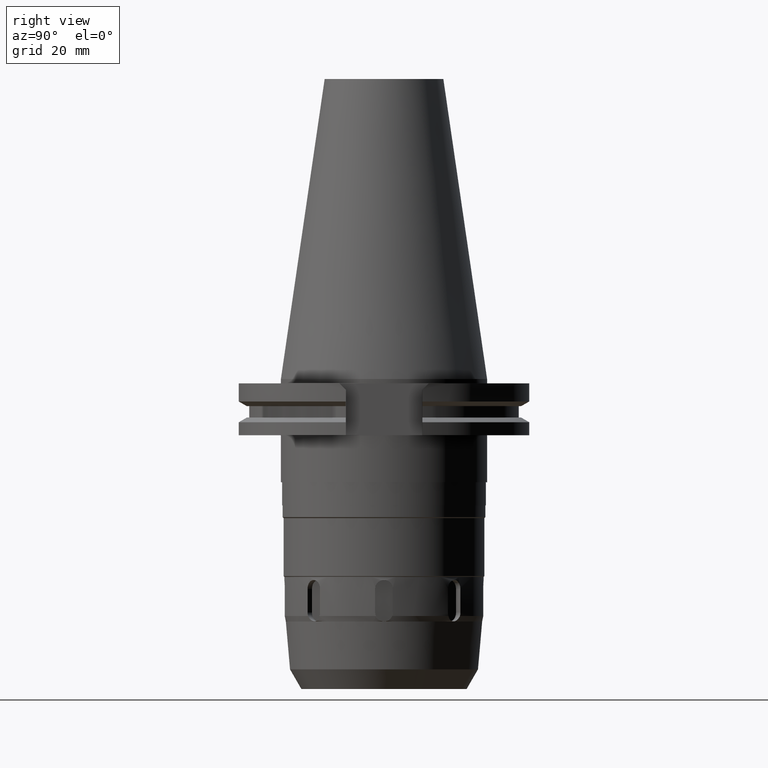
[diagram: clean part render]
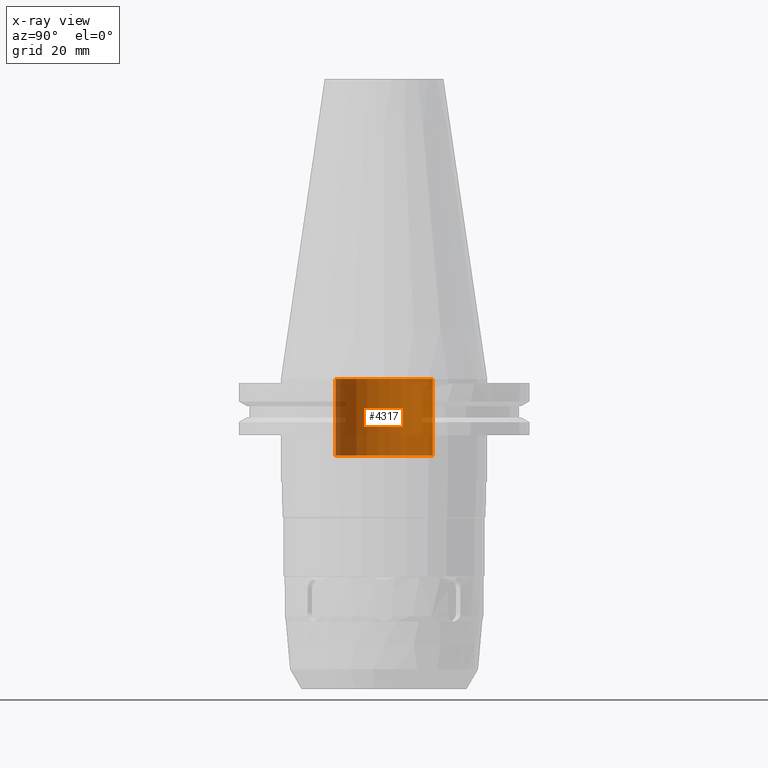
[diagram: x-ray — body ghosted, one internal face saturated and labeled with its STEP entity id]
A machine part, right view, then the same camera in x-ray: the body is ghosted and one INTERNAL B-rep face — a face not visible from any outside direction — is saturated and labeled: STEP entity #4317.
In plain terms, the highlighted cylindrical surface (partial cylindrical patch) has radius 16.5 mm, axis along (0, 0, 1).
Its self-contained STEP definition (entity closure, byte-faithful):
#1979=CARTESIAN_POINT('',(0.E0,0.E0,-2.6E1));
#1980=DIRECTION('',(0.E0,0.E0,-1.E0));
#1981=DIRECTION('',(0.E0,-1.E0,0.E0));
#1982=AXIS2_PLACEMENT_3D('',#1979,#1980,#1981);
#2011=DIRECTION('',(0.E0,0.E0,1.E0));
#2012=VECTOR('',#2011,2.6E1);
#2013=CARTESIAN_POINT('',(0.E0,-1.65E1,-2.6E1));
#2014=LINE('',#2013,#2012);
#2018=DIRECTION('',(0.E0,0.E0,1.E0));
#2019=VECTOR('',#2018,2.6E1);
#2020=CARTESIAN_POINT('',(0.E0,1.65E1,-2.6E1));
#2021=LINE('',#2020,#2019);
#2033=CARTESIAN_POINT('',(0.E0,0.E0,-5.684341886081E-14));
#2034=DIRECTION('',(0.E0,0.E0,1.E0));
#2035=DIRECTION('',(0.E0,1.E0,0.E0));
#2036=AXIS2_PLACEMENT_3D('',#2033,#2034,#2035);
#2867=CARTESIAN_POINT('',(0.E0,-1.65E1,-2.6E1));
#2868=CARTESIAN_POINT('',(0.E0,1.65E1,-2.6E1));
#2869=VERTEX_POINT('',#2867);
#2870=VERTEX_POINT('',#2868);
#2871=CARTESIAN_POINT('',(0.E0,1.65E1,1.776356839400E-14));
#2872=VERTEX_POINT('',#2871);
#2873=CARTESIAN_POINT('',(0.E0,-1.65E1,1.776356839400E-14));
#2874=VERTEX_POINT('',#2873);
#4303=CARTESIAN_POINT('',(0.E0,0.E0,-1.1533E2));
#4304=DIRECTION('',(0.E0,0.E0,1.E0));
#4305=DIRECTION('',(0.E0,1.E0,0.E0));
#4306=AXIS2_PLACEMENT_3D('',#4303,#4304,#4305);
#4307=CYLINDRICAL_SURFACE('',#4306,1.65E1);
#4309=ORIENTED_EDGE('',*,*,#4308,.F.);
#4310=ORIENTED_EDGE('',*,*,#4292,.F.);
#4312=ORIENTED_EDGE('',*,*,#4311,.T.);
#4314=ORIENTED_EDGE('',*,*,#4313,.F.);
#4315=EDGE_LOOP('',(#4309,#4310,#4312,#4314));
#4316=FACE_OUTER_BOUND('',#4315,.F.);
#1983=CIRCLE('',#1982,1.65E1);
#2037=CIRCLE('',#2036,1.65E1);
#4292=EDGE_CURVE('',#2869,#2870,#1983,.T.);
#4308=EDGE_CURVE('',#2870,#2872,#2021,.T.);
#4311=EDGE_CURVE('',#2869,#2874,#2014,.T.);
#4313=EDGE_CURVE('',#2872,#2874,#2037,.T.);
#4317=ADVANCED_FACE('',(#4316),#4307,.F.);